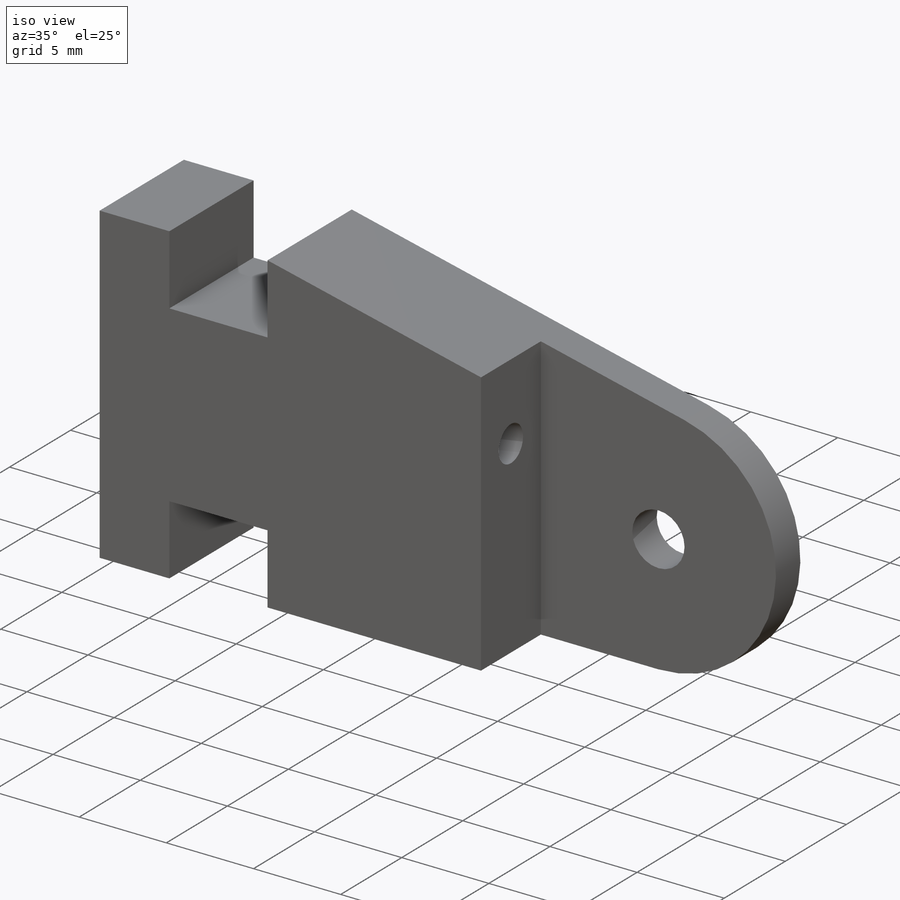
[diagram: iso view]
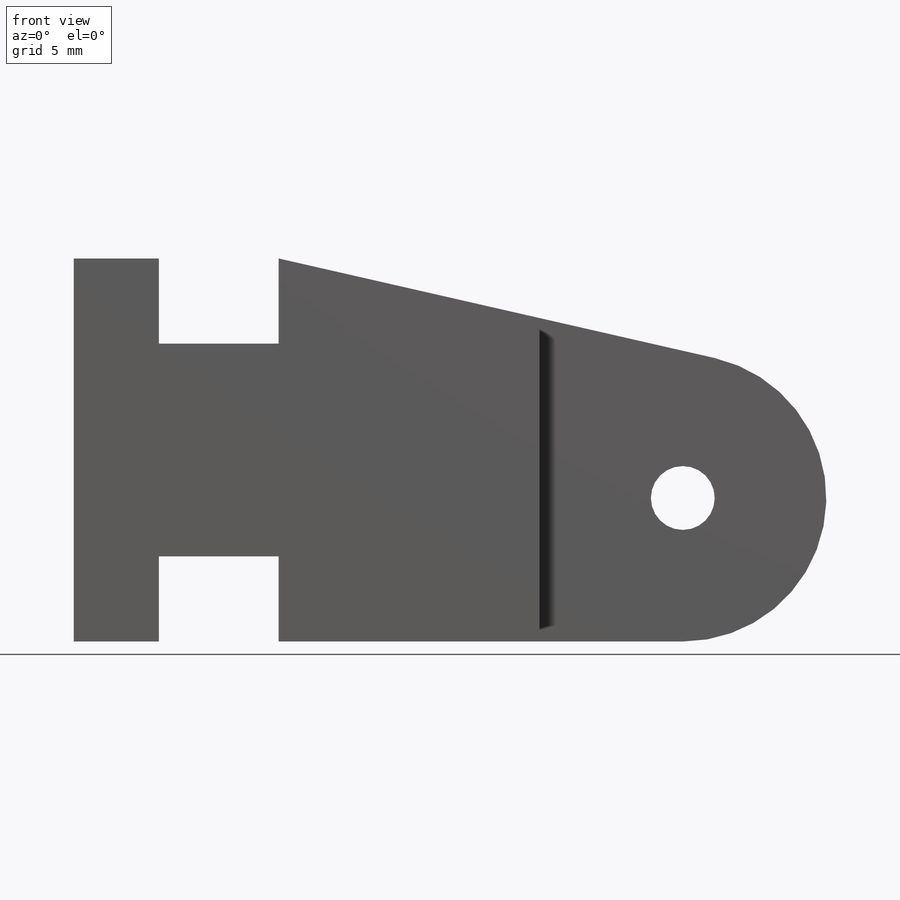
[diagram: front view]
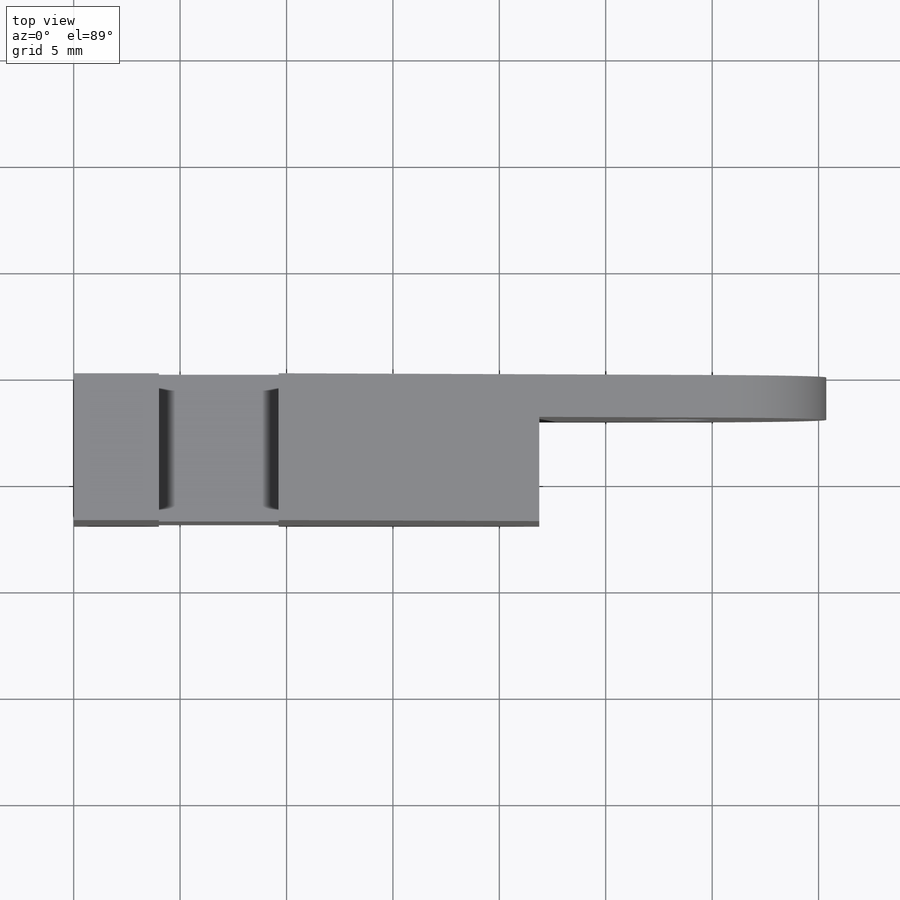
[diagram: top view]
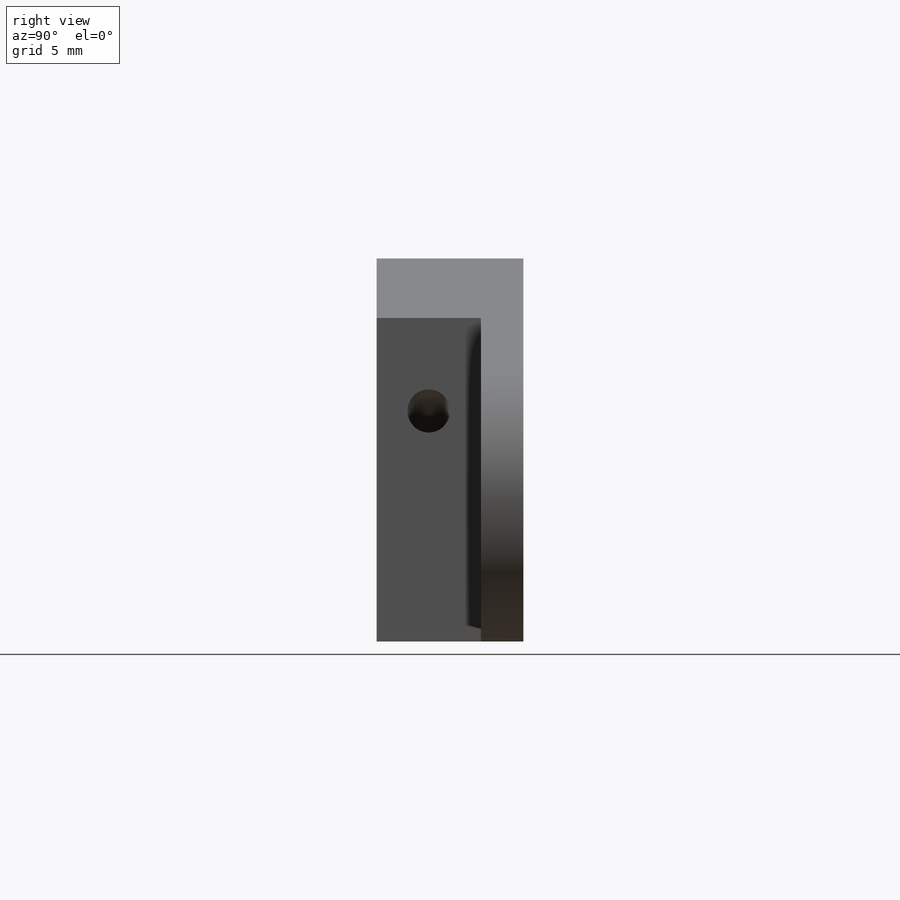
[diagram: right view]
SOLIDWORKS PART (.sldprt)
format: sldprt  version: not decoded by parser v0  size: 245,248 bytes
history: native  units: mm
features: sketch x4, cut_extrude x3, material x1, extrude x1 (+13 scaffold rows collapsed)
feature tree (22):
  scaffold x13  (default folders/planes/origin — collapsed)
  material  "Material <not specified>"
  sketch  "Sketch1"  dims[c1.D16=6.0mm c1.D19=~5.000026mm c1.D15=~7.000026mm c1.D17=~7.000026mm c2.D15=3.0mm c2.D16=~6.745044mm c2.D1=3.0mm c2.D2=~6.745044mm c2.D12=24.24mm c3.D1=19.42mm c3.D2=3.92mm c3.D3=4.0mm c3.D4=4.0mm c3.D5=4.0mm c3.D6=4.0mm c3.D7=3.5mm c3.D8=8.0mm c3.D9=3.92mm c3.D10=4.0mm c3.D11=4.0mm c3.D12=4.0mm c3.D13=7.11mm c3.D14=8.0mm c3.D15=4.0mm c3.D17=~15.899293mm c3.D18=~12.521516mm c4.D2=18.0mm c4.D3=~5.631516mm c4.D4=4.0mm c4.D5=14.0mm c4.D7=~17.261962mm c4.D8=1.81mm c4.D9=5.0mm c4.D10=2.0mm c4.D11=2.0mm c4.D13=5.0mm c4.D14=5.0mm c4.D15=2.0mm c5.D7=4.0mm c5.D8=~3.999647mm c5.D14=5.0mm c5.D5=~15.501493mm c5.D17=2.5mm c5.D3=4.0mm c5.D4=~5.38718mm c6.D5=~6.255421mm c6.D6=~7.356796mm c6.D7=~8.225037mm c6.D8=~9.631516mm c6.D9=~12.280835mm c6.D10=~13.149075mm c6.D11=~14.25045mm c6.D12=~15.118691mm c6.D13=~25.132963mm c6.D14=~26.920391mm c6.D4=~5.38718mm c7.D5=~6.255421mm c7.D6=~7.356796mm c7.D7=~12.280835mm c7.D9=~3.999659mm c7.D10=~5.538699mm c7.D11=~5.885996mm c7.D12=~6.744703mm c7.D15=~6.754237mm c7.D16=~7.101533mm c7.D17=~10.462738mm c7.D18=~10.810034mm c7.D19=~11.678275mm c7.D20=~12.025572mm c7.D21=~13.248604mm c7.D22=14.0mm c7.D23=18.0mm c7.D24=~0.000341mm c8.D9=~3.999659mm c8.D10=~5.538699mm c8.D11=~5.885996mm c8.ThumbLinkLengthMCP=18.99mm c8.D8=~18.000341mm c9.D9=~5.631516mm c9.D13=~9.631516mm]
  extrude  "Boss-Extrude1"  Depth=6.9mm
  sketch  "Sketch4"  dims[D1=~21.876472mm]
  cut_extrude  "Cut-Extrude2"  Depth=4.9mm
  sketch  "Sketch5"  dims[c1.D1=~1.623995mm c1.D3=2.0mm c2.D1=4.45mm c2.D2=8.0mm]
  cut_extrude  "Cut-Extrude3"  Depth=7mm
  sketch  "Sketch7"  dims[c1.D2=~1.750618mm c1.D3=2.0mm c1.D1=6.87mm c2.D2=4.45mm]
  cut_extrude  "Cut-Extrude4"  Depth=1mm
decode coverage: 8 of 8 modeling features carry decoded parameters
note: ~ marks probable driven/reference dimensions
note: suppression state not decoded; provenance and decode notes live in map.json
